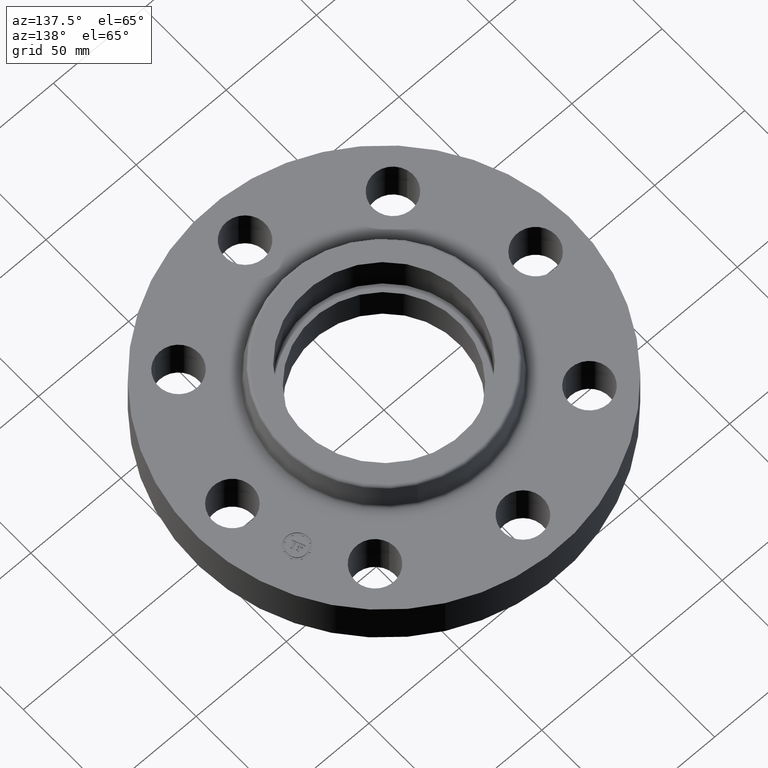
[diagram: clean part render]
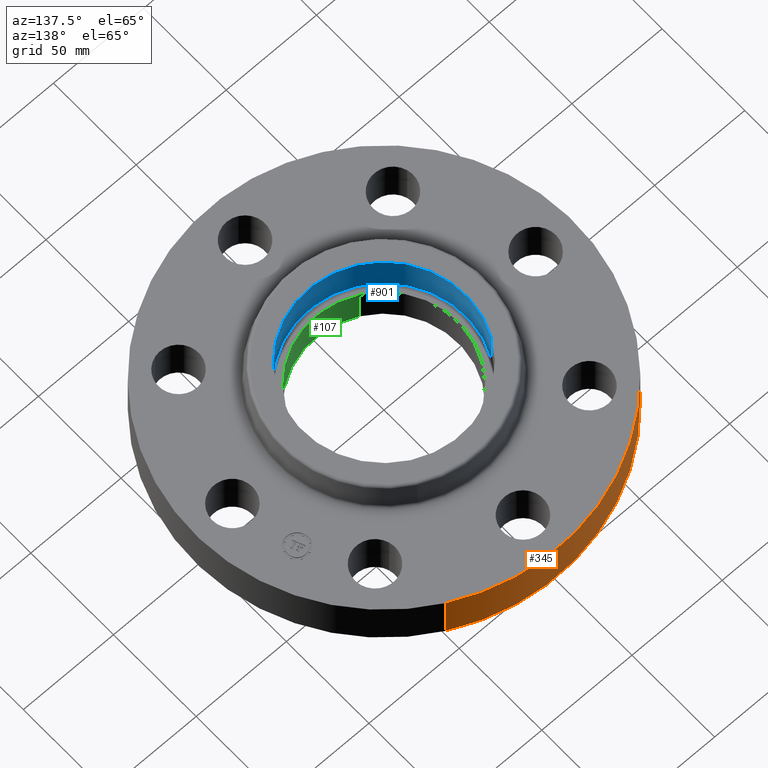
[diagram: same view with three faces highlighted in distinct colors, each labeled with its STEP entity id]
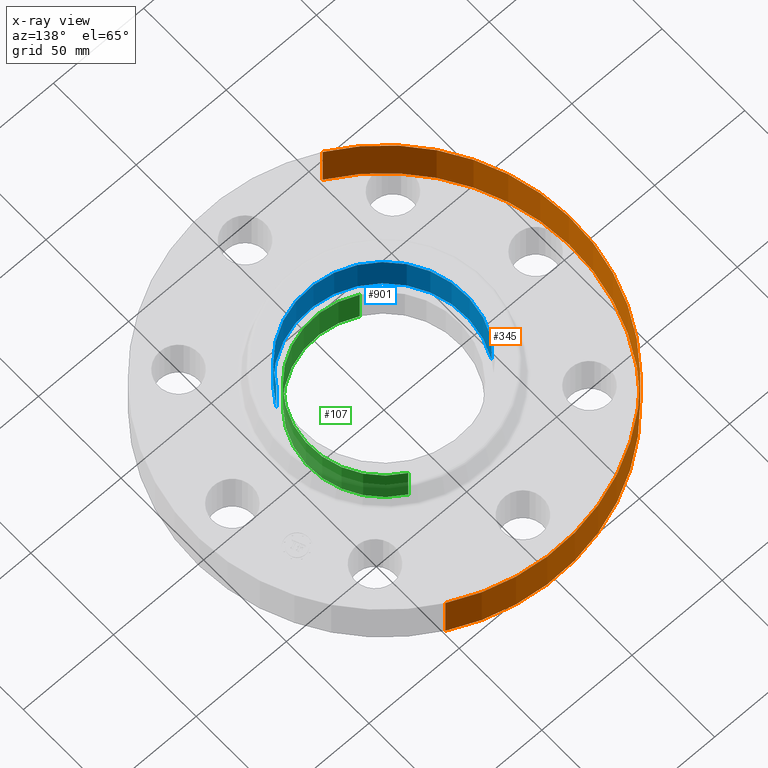
[diagram: x-ray of the same camera — body ghosted, the three highlighted faces saturated]
A machine part, auxiliary view with three faces highlighted in distinct colors.
The next image is the same camera in x-ray (body ghosted, the three faces saturated) — at least one of them is partly hidden behind the body in this view.
Their STEP definitions:

[orange] entity #345 — the highlighted cylindrical surface (partial cylindrical patch) has radius 104.775 mm, axis along (0, 0, -1).
#150=AXIS2_PLACEMENT_3D('Circle Axis2P3D',#148,#149,$) ;
#318=AXIS2_PLACEMENT_3D('Cylinder Axis2P3D',#315,#316,#317) ;
#329=AXIS2_PLACEMENT_3D('Circle Axis2P3D',#327,#328,$) ;
#148=CARTESIAN_POINT('Axis2P3D Location',(0.,0.,0.)) ;
#152=CARTESIAN_POINT('Vertex',(-1.97763034675,-3.62002806781,5.59482469102E-016)) ;
#154=CARTESIAN_POINT('Vertex',(1.97763034675,3.62002806781,5.59482469102E-016)) ;
#315=CARTESIAN_POINT('Axis2P3D Location',(0.,0.,0.815000000003)) ;
#320=CARTESIAN_POINT('Line Origine',(-1.97763034675,-3.62002806781,0.530000000002)) ;
#324=CARTESIAN_POINT('Vertex',(-1.97763034675,-3.62002806781,1.06)) ;
#327=CARTESIAN_POINT('Axis2P3D Location',(0.,0.,1.06)) ;
#331=CARTESIAN_POINT('Vertex',(1.97763034675,3.62002806781,1.06)) ;
#334=CARTESIAN_POINT('Line Origine',(1.97763034675,3.62002806781,0.530000000002)) ;
#149=DIRECTION('Axis2P3D Direction',(0.,0.,-0.0393700787402)) ;
#316=DIRECTION('Axis2P3D Direction',(0.,0.,-0.0393700787402)) ;
#317=DIRECTION('Axis2P3D XDirection',(0.0188750212049,0.0345504945626,0.)) ;
#321=DIRECTION('Vector Direction',(0.,0.,-0.0393700787402)) ;
#328=DIRECTION('Axis2P3D Direction',(0.,0.,-0.0393700787402)) ;
#335=DIRECTION('Vector Direction',(0.,0.,-0.0393700787402)) ;
#322=VECTOR('Line Direction',#321,0.0393700787402) ;
#336=VECTOR('Line Direction',#335,0.0393700787402) ;
#340=ORIENTED_EDGE('',*,*,#156,.F.) ;
#341=ORIENTED_EDGE('',*,*,#326,.T.) ;
#342=ORIENTED_EDGE('',*,*,#333,.T.) ;
#343=ORIENTED_EDGE('',*,*,#338,.F.) ;
#345=ADVANCED_FACE('PartBody',(#344),#319,.T.) ;
#151=CIRCLE('generated circle',#150,4.12500000002) ;
#330=CIRCLE('generated circle',#329,4.12500000002) ;
#319=CYLINDRICAL_SURFACE('generated cylinder',#318,4.12500000002) ;
#156=EDGE_CURVE('',#153,#155,#151,.T.) ;
#326=EDGE_CURVE('',#153,#325,#323,.F.) ;
#333=EDGE_CURVE('',#325,#332,#330,.T.) ;
#338=EDGE_CURVE('',#155,#332,#337,.F.) ;
#339=EDGE_LOOP('',(#340,#341,#342,#343)) ;
#344=FACE_OUTER_BOUND('',#339,.T.) ;
#323=LINE('Line',#320,#322) ;
#337=LINE('Line',#334,#336) ;
#153=VERTEX_POINT('',#152) ;
#155=VERTEX_POINT('',#154) ;
#325=VERTEX_POINT('',#324) ;
#332=VERTEX_POINT('',#331) ;

[blue] entity #901 — the highlighted cylindrical surface (partial cylindrical patch) has radius 45.339 mm, axis along (0, 0, -1).
#51=AXIS2_PLACEMENT_3D('Circle Axis2P3D',#49,#50,$) ;
#521=AXIS2_PLACEMENT_3D('Circle Axis2P3D',#519,#520,$) ;
#876=AXIS2_PLACEMENT_3D('Cylinder Axis2P3D',#873,#874,#875) ;
#44=CARTESIAN_POINT('Vertex',(-1.56648487298,0.855774586412,0.820000000003)) ;
#46=CARTESIAN_POINT('Vertex',(1.56648487298,-0.855774586412,0.820000000003)) ;
#49=CARTESIAN_POINT('Axis2P3D Location',(0.,-6.99353086378E-017,0.820000000003)) ;
#514=CARTESIAN_POINT('Vertex',(-1.56648487298,0.855774586412,1.63000000001)) ;
#516=CARTESIAN_POINT('Vertex',(1.56648487298,-0.855774586412,1.63000000001)) ;
#519=CARTESIAN_POINT('Axis2P3D Location',(1.39870617276E-016,0.,1.63000000001)) ;
#873=CARTESIAN_POINT('Axis2P3D Location',(0.,-6.99353086378E-017,1.62606299213)) ;
#878=CARTESIAN_POINT('Line Origine',(-1.56648487298,0.855774586412,1.225)) ;
#883=CARTESIAN_POINT('Line Origine',(1.56648487298,-0.855774586412,1.225)) ;
#50=DIRECTION('Axis2P3D Direction',(0.,0.,-0.0393700787402)) ;
#520=DIRECTION('Axis2P3D Direction',(0.,0.,-0.0393700787402)) ;
#874=DIRECTION('Axis2P3D Direction',(0.,0.,-0.0393700787402)) ;
#875=DIRECTION('Axis2P3D XDirection',(0.0345504945626,-0.0188750212049,0.)) ;
#879=DIRECTION('Vector Direction',(0.,0.,-0.0393700787402)) ;
#884=DIRECTION('Vector Direction',(0.,0.,-0.0393700787402)) ;
#880=VECTOR('Line Direction',#879,0.0393700787402) ;
#885=VECTOR('Line Direction',#884,0.0393700787402) ;
#896=ORIENTED_EDGE('',*,*,#523,.F.) ;
#897=ORIENTED_EDGE('',*,*,#887,.F.) ;
#898=ORIENTED_EDGE('',*,*,#53,.T.) ;
#899=ORIENTED_EDGE('',*,*,#882,.T.) ;
#901=ADVANCED_FACE('PartBody',(#900),#877,.F.) ;
#52=CIRCLE('generated circle',#51,1.78500000001) ;
#522=CIRCLE('generated circle',#521,1.78500000001) ;
#877=CYLINDRICAL_SURFACE('generated cylinder',#876,1.78500000001) ;
#53=EDGE_CURVE('',#47,#45,#52,.T.) ;
#523=EDGE_CURVE('',#517,#515,#522,.T.) ;
#882=EDGE_CURVE('',#45,#515,#881,.F.) ;
#887=EDGE_CURVE('',#47,#517,#886,.F.) ;
#895=EDGE_LOOP('',(#896,#897,#898,#899)) ;
#900=FACE_OUTER_BOUND('',#895,.T.) ;
#881=LINE('Line',#878,#880) ;
#886=LINE('Line',#883,#885) ;
#45=VERTEX_POINT('',#44) ;
#47=VERTEX_POINT('',#46) ;
#515=VERTEX_POINT('',#514) ;
#517=VERTEX_POINT('',#516) ;

[green] entity #107 — the highlighted cylindrical surface (partial cylindrical patch) has radius 41.402 mm, axis along (0, 0, -1).
#69=AXIS2_PLACEMENT_3D('Circle Axis2P3D',#67,#68,$) ;
#80=AXIS2_PLACEMENT_3D('Cylinder Axis2P3D',#77,#78,#79) ;
#91=AXIS2_PLACEMENT_3D('Circle Axis2P3D',#89,#90,$) ;
#62=CARTESIAN_POINT('Vertex',(-0.781463627928,-1.43045957589,0.820000000003)) ;
#64=CARTESIAN_POINT('Vertex',(0.781463627928,1.43045957589,0.820000000003)) ;
#67=CARTESIAN_POINT('Axis2P3D Location',(2.79741234551E-016,-6.99353086378E-017,0.820000000003)) ;
#77=CARTESIAN_POINT('Axis2P3D Location',(0.,0.,0.815000000003)) ;
#82=CARTESIAN_POINT('Line Origine',(0.781463627928,1.43045957589,0.410000000002)) ;
#86=CARTESIAN_POINT('Vertex',(0.781463627928,1.43045957589,-5.03534222192E-015)) ;
#89=CARTESIAN_POINT('Axis2P3D Location',(0.,0.,-5.03534222192E-015)) ;
#93=CARTESIAN_POINT('Vertex',(-0.781463627928,-1.43045957589,-5.03534222192E-015)) ;
#96=CARTESIAN_POINT('Line Origine',(-0.781463627928,-1.43045957589,0.410000000002)) ;
#68=DIRECTION('Axis2P3D Direction',(0.,0.,-0.0393700787402)) ;
#78=DIRECTION('Axis2P3D Direction',(0.,0.,-0.0393700787402)) ;
#79=DIRECTION('Axis2P3D XDirection',(-0.0188750212049,-0.0345504945626,0.)) ;
#83=DIRECTION('Vector Direction',(0.,0.,-0.0393700787402)) ;
#90=DIRECTION('Axis2P3D Direction',(0.,0.,-0.0393700787402)) ;
#97=DIRECTION('Vector Direction',(0.,0.,-0.0393700787402)) ;
#84=VECTOR('Line Direction',#83,0.0393700787402) ;
#98=VECTOR('Line Direction',#97,0.0393700787402) ;
#102=ORIENTED_EDGE('',*,*,#88,.T.) ;
#103=ORIENTED_EDGE('',*,*,#95,.T.) ;
#104=ORIENTED_EDGE('',*,*,#100,.F.) ;
#105=ORIENTED_EDGE('',*,*,#71,.F.) ;
#107=ADVANCED_FACE('PartBody',(#106),#81,.F.) ;
#70=CIRCLE('generated circle',#69,1.63000000001) ;
#92=CIRCLE('generated circle',#91,1.63000000001) ;
#81=CYLINDRICAL_SURFACE('generated cylinder',#80,1.63000000001) ;
#71=EDGE_CURVE('',#65,#63,#70,.T.) ;
#88=EDGE_CURVE('',#65,#87,#85,.T.) ;
#95=EDGE_CURVE('',#87,#94,#92,.T.) ;
#100=EDGE_CURVE('',#63,#94,#99,.T.) ;
#101=EDGE_LOOP('',(#102,#103,#104,#105)) ;
#106=FACE_OUTER_BOUND('',#101,.T.) ;
#85=LINE('Line',#82,#84) ;
#99=LINE('Line',#96,#98) ;
#63=VERTEX_POINT('',#62) ;
#65=VERTEX_POINT('',#64) ;
#87=VERTEX_POINT('',#86) ;
#94=VERTEX_POINT('',#93) ;